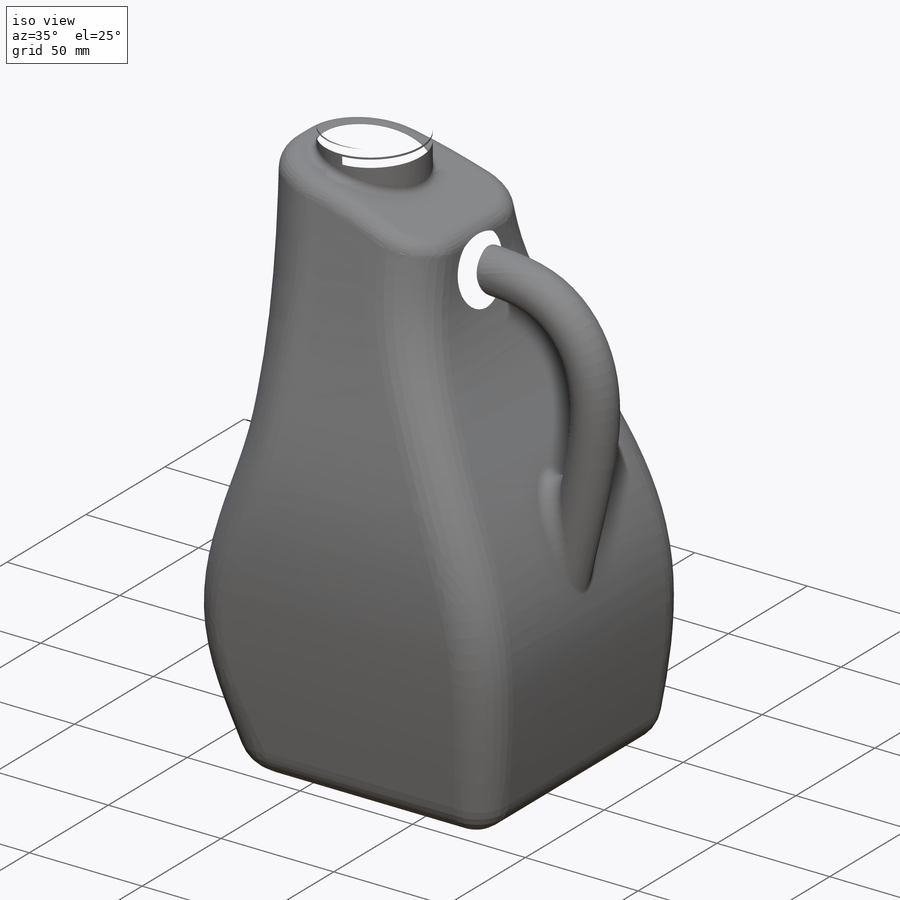
[diagram: iso view]
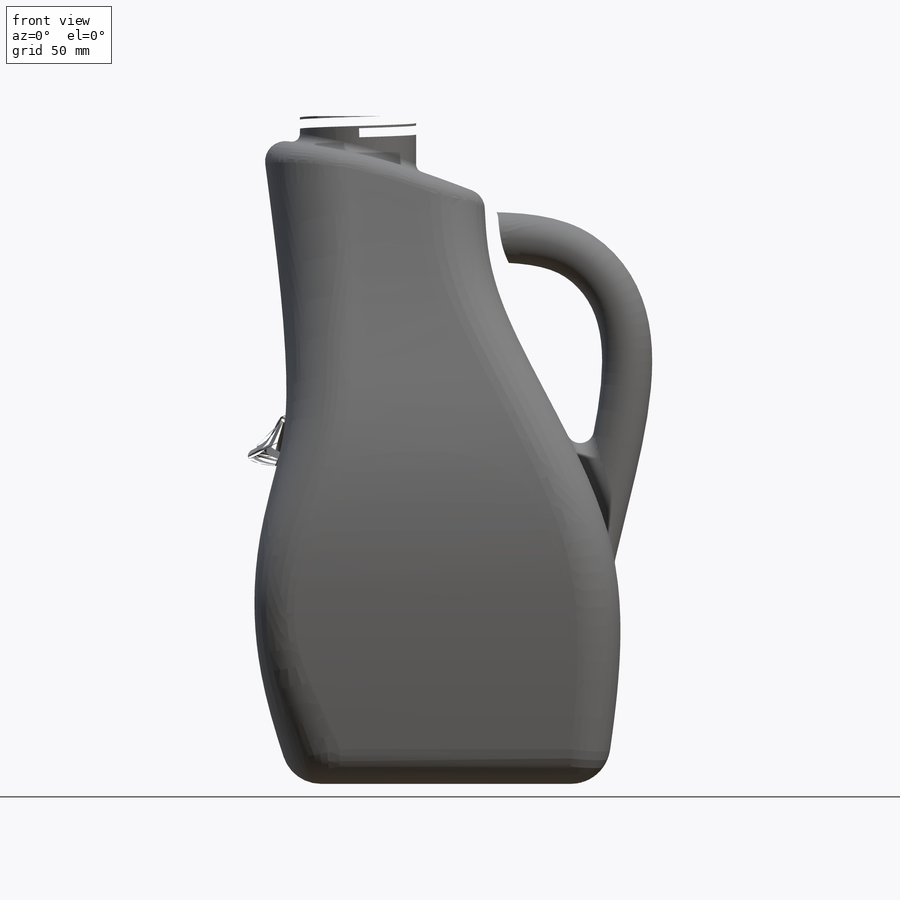
[diagram: front view]
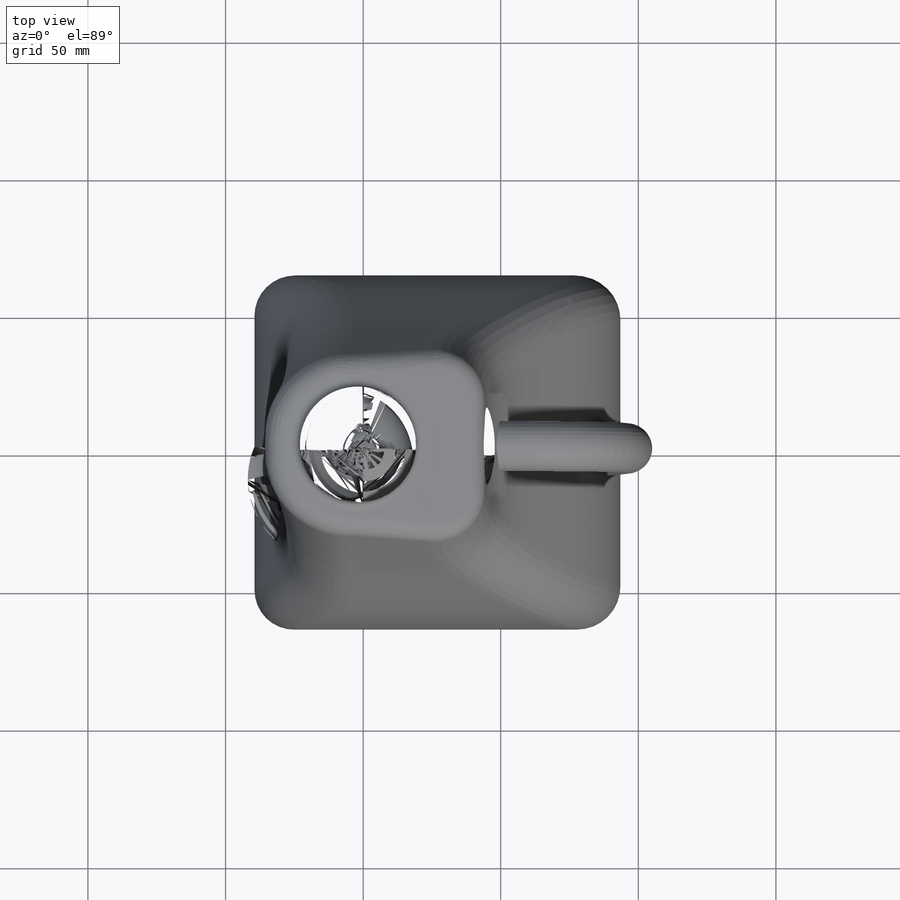
[diagram: top view]
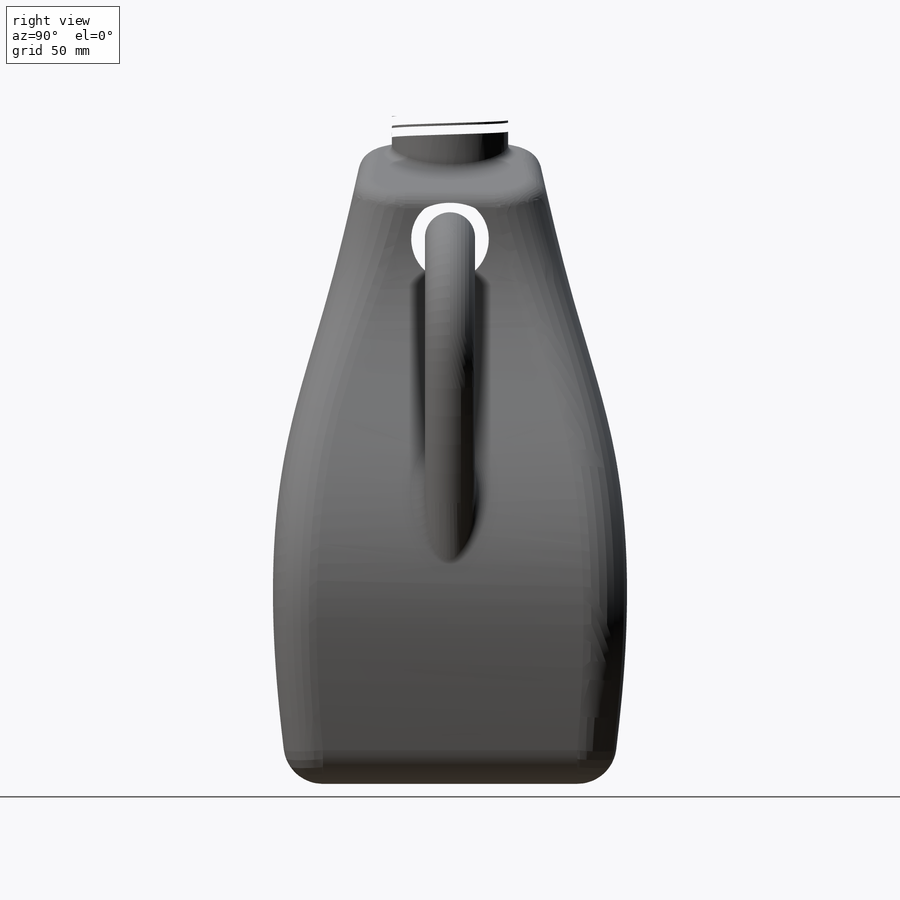
[diagram: right view]
SOLIDWORKS PART (.sldprt)
format: sldprt  version: not decoded by parser v0  size: 2,075,136 bytes
history: native  units: mm
features: plane x10, sketch x9, delete_body x5, fillet x5, extrude x3, sweep x2, material x1, pattern_linear x1, helix x1, shell x1 (+16 scaffold rows collapsed)
feature tree (54):
  scaffold x16  (default folders/planes/origin — collapsed)
  material  "ABS"
  plane  "Plane1"  Offset=50mm
  plane  "Plane2"  Offset=80mm
  plane  "Plane3"  Offset=22mm
  plane  "Plane4"  Offset=60mm
  sketch  "Sketch1"  dims[c1.D1=100.0mm c1.D2=70.0mm c1.D3=60.0mm c1.D4=70.0mm c1.D5=110.0mm c2.D3=55.0mm c2.D4=65.0mm c2.D5=20.0mm c2.D6=13.75mm c2.D7=19.5mm c2.D8=12.0mm c2.D9=30.0mm c2.D10=8.5mm c2.D11=38.0mm c2.D12=50.0mm c2.D13=72.0mm c2.D14=70.0mm c2.D15=11.0mm c2.D16=39.5mm c3.D6=9.0mm c3.D17=38.0mm c3.D18=39.5mm]
  extrude  "Extrude1"  Depth=100mm
  plane  "Plane5"  Offset=55mm
  sketch  "Sketch2"  dims[D1=42.5mm D2=45.0mm D3=43.0mm D4=32.0mm D5=22.0mm D6=100.0mm D7=78.0mm D8=12.0mm D9=28.5mm]
  delete_body  "Body-Delete1"
  delete_body  "Body-Delete2"
  sketch  "Sketch10"  dims[c1.D1=~10.774776mm c1.D2=~49.296691mm c2.D1=10.0mm c2.D2=15.0mm c2.D3=15.0mm c2.D4=10.0mm c3.D1=10.0mm c3.D2=10.0mm c3.D3=17.0mm c3.D4=17.0mm c4.D2=17.0mm]
  extrude  "Extrude3"  Depth=10mm
  pattern_linear  "LPattern7"  Count1=4 Count2=1 Spacing1=17mm Spacing2=50mm
  fillet  "Fillet19"  Radius=4mm
  fillet  "Fillet20"  Radius=3mm
  sketch  "Sketch3"  dims[c1.D1=47.0mm c1.D2=20.0mm c1.D3=50.0mm c1.D4=67.0mm c1.D0=15.0mm c2.D1=20.0mm c2.D2=18.0mm c2.D3=10.0mm c2.D4=15.0mm c2.D0=15.0mm c3.D1=20.0mm c3.D2=18.0mm c3.D3=15.0mm c3.D4=10.0mm c3.D0=14.0mm c4.D1=10.0mm c4.D2=13.0mm c4.D3=12.0mm c4.D4=11.0mm c4.D0=14.0mm c5.D1=10.0mm c5.D2=13.0mm c5.D3=12.0mm c5.D4=11.0mm c5.D0=0.0mm c6.D1=0.0mm c6.D2=0.0mm c6.D3=0.0mm c6.D4=0.0mm c6.D5=0.0mm c6.D6=0.0mm c6.D7=5.0mm]
  fillet  "Fillet29"  Radius=10mm
  plane  "Plane6"
  sketch  "Sketch4"  dims[D1=12.5mm]
  sweep  "Sweep1"
  plane  "Plane7"
  plane  "Plane8"  Offset=7mm
  sketch  "Sketch5"  dims[D1=30.0mm D2=5.0mm]
  extrude  "Extrude2"  [1 undecoded]
  sketch  "Sketch7"  dims[D1=29.0mm]
  helix  "Helix/Spiral1"  Pitch=6mm
  fillet  "Fillet21"  Radius=2.5mm
  fillet  "Fillet22"  Radius=4mm
  plane  "Plane9"
  sketch  "Sketch8"  dims[c1.D1=~1.764215mm c2.D1=60.0deg c3.D1=~2.134683mm c4.D1=60.0deg c4.D2=~1.090491mm c5.D2=30.0deg c5.D3=1.5mm c5.D4=1.5mm c5.D5=0.65mm]
  sweep  "Cut-Sweep3"
  delete_body  "Body-Delete3"
  delete_body  "Body-Delete4"
  delete_body  "Body-Delete5"
  shell  "Shell4"  Thickness=0.5mm
  plane  "Plane11"  Offset=100mm
  sketch  "Sketch11"
decode coverage: 18 of 27 modeling features carry decoded parameters
note: ~ marks probable driven/reference dimensions
note: 1 parameter value undecoded
note: suppression state not decoded; provenance and decode notes live in map.json
